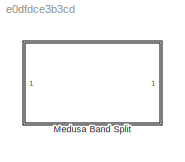
MODEL slx_e0dfdce3b3cd
KIND library
CONFIG AbsTol = auto
CONFIG EnableMultiTasking = off
CONFIG FixedStep = auto
CONFIG MaxStep = auto
CONFIG MinStep = auto
CONFIG RelTol = 1e-3
CONFIG SampleTimeConstraint = Unconstrained
CONFIG SolverName = VariableStepAuto
CONFIG StartTime = 0.0
CONFIG StopTime = 10.0
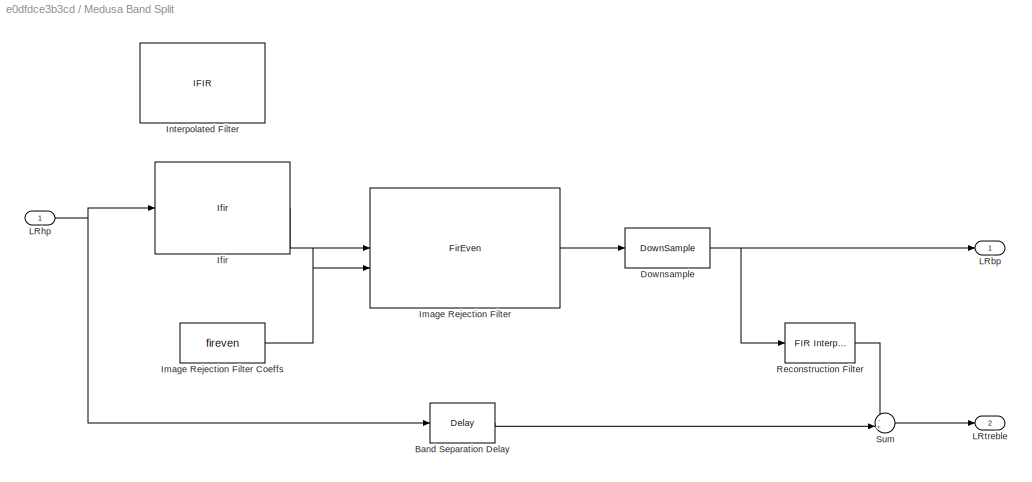
BLOCK [SubSystem] Medusa Band Split
BLOCK [Delay] Medusa Band Split/Band Separation Delay
  DelayLength = band_separation_delay
  InputPortMap = u0
  InputProcessing = Columns as channels (frame based)
BLOCK [DownSample] Medusa Band Split/Downsample
  N = D
BLOCK [Reference] Medusa Band Split/Ifir  REF=Ifir/Ifir
  SourceBlock = Ifir/Ifir
  SourceType = Interpolated FIR
BLOCK [Reference] Medusa Band Split/Image Rejection Filter  REF=FirEven/FirEven
  SourceBlock = FirEven/FirEven
  SourceProductName = Bose Blocklib
BLOCK [Constant] Medusa Band Split/Image Rejection Filter Coeffs
  Value = fireven
BLOCK [Reference] Medusa Band Split/Interpolated Filter  REF=IFIR/IFIR
  SourceBlock = IFIR/IFIR
  SourceType = Interpolated FIR
BLOCK [Outport] Medusa Band Split/LRbp
  VectorParamsAs1DForOutWhenUnconnected = off
BLOCK [Inport] Medusa Band Split/LRhp
BLOCK [Outport] Medusa Band Split/LRtreble
  Port = 2
  VectorParamsAs1DForOutWhenUnconnected = off
BLOCK [Reference] Medusa Band Split/Reconstruction Filter  REF=dspmlti4/FIR
Interpolation
  SourceBlock = dspmlti4/FIR\nInterpolation
  SourceType = FIR Interpolation
  UserDataPersistent = on
BLOCK [Sum] Medusa Band Split/Sum
  Inputs = -+|
LINE Medusa Band Split/Band Separation Delay:1 -> Medusa Band Split/Sum:2
NET Medusa Band Split/Downsample:1 -> Medusa Band Split/LRbp:1, Medusa Band Split/Reconstruction Filter:1
LINE Medusa Band Split/Ifir:1 -> Medusa Band Split/Image Rejection Filter:1
LINE Medusa Band Split/Image Rejection Filter Coeffs:1 -> Medusa Band Split/Image Rejection Filter:2
LINE Medusa Band Split/Image Rejection Filter:1 -> Medusa Band Split/Downsample:1
NET Medusa Band Split/LRhp:1 -> Medusa Band Split/Band Separation Delay:1, Medusa Band Split/Ifir:1
LINE Medusa Band Split/Reconstruction Filter:1 -> Medusa Band Split/Sum:1
LINE Medusa Band Split/Sum:1 -> Medusa Band Split/LRtreble:1
note: NET lines group one-source signal fan-out (src -> all destinations, sorted); 1:1 wires keep LINE
